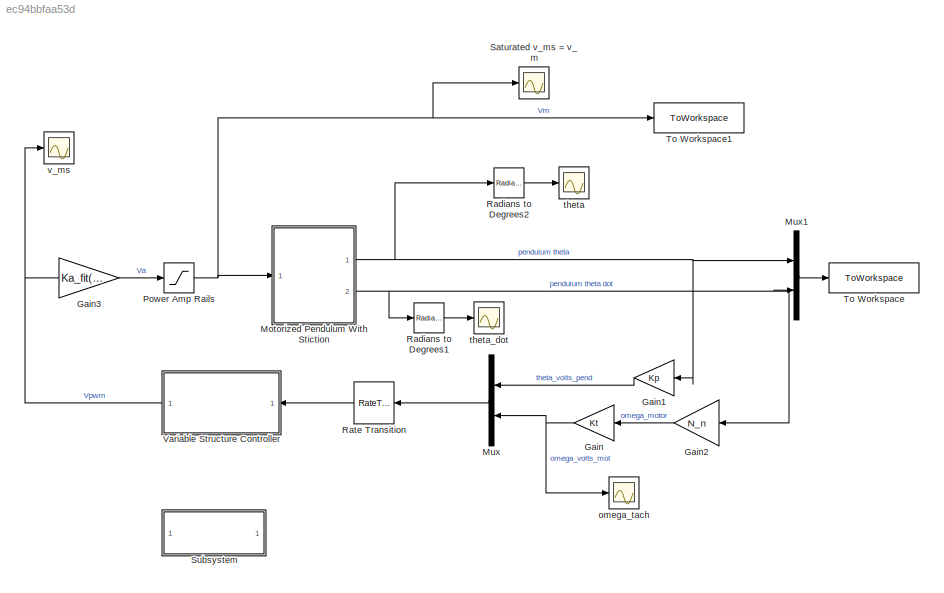
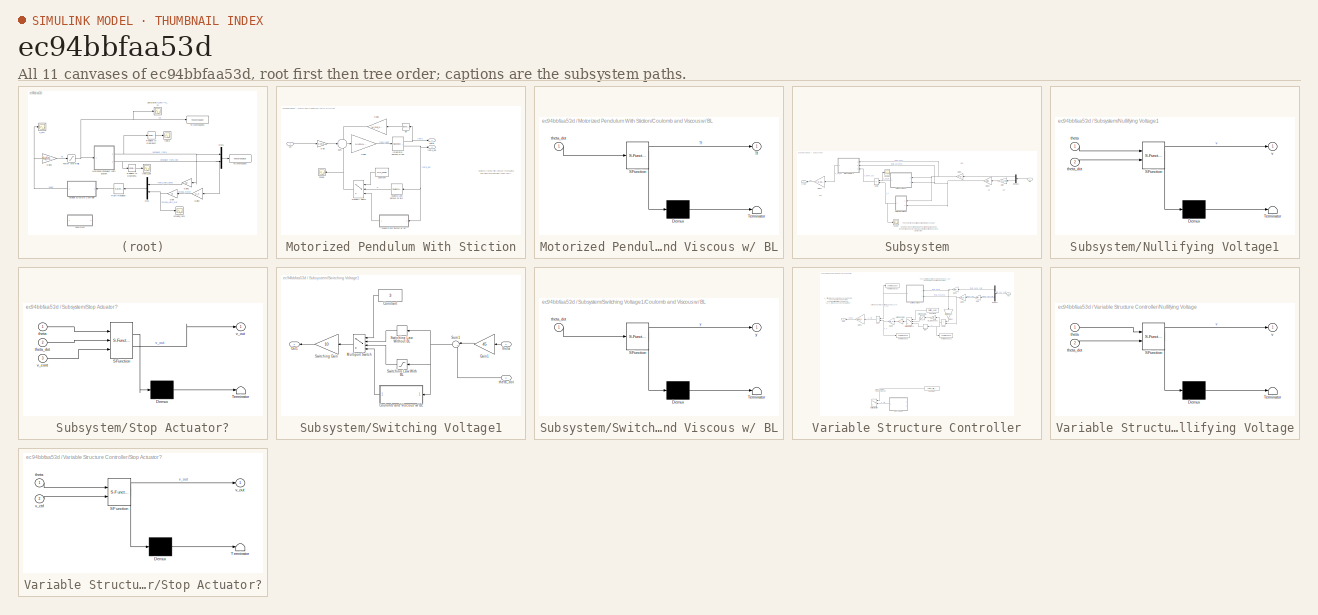
[diagram: thumbnail index - all 11 canvases of the model, root first then tree order]
MODEL slx_ec94bbfaa53d
KIND model
CONFIG AbsTol = auto
CONFIG EnableMultiTasking = off
CONFIG FixedStep = auto
CONFIG MaxStep = 1e-4
CONFIG MinStep = 1e-6
CONFIG RelTol = 1e-9
CONFIG SampleTimeConstraint = Unconstrained
CONFIG SolverName = VariableStepAuto
CONFIG StartTime = 0.0
CONFIG StopTime = tsim
BLOCK [Gain] Gain
  Gain = Kt
  NameLocation = top
BLOCK [Gain] Gain1
  Gain = Kp
  NameLocation = top
BLOCK [Gain] Gain2
  Gain = N_n
  NameLocation = top
BLOCK [Gain] Gain3
  Gain = Ka_fit(1)
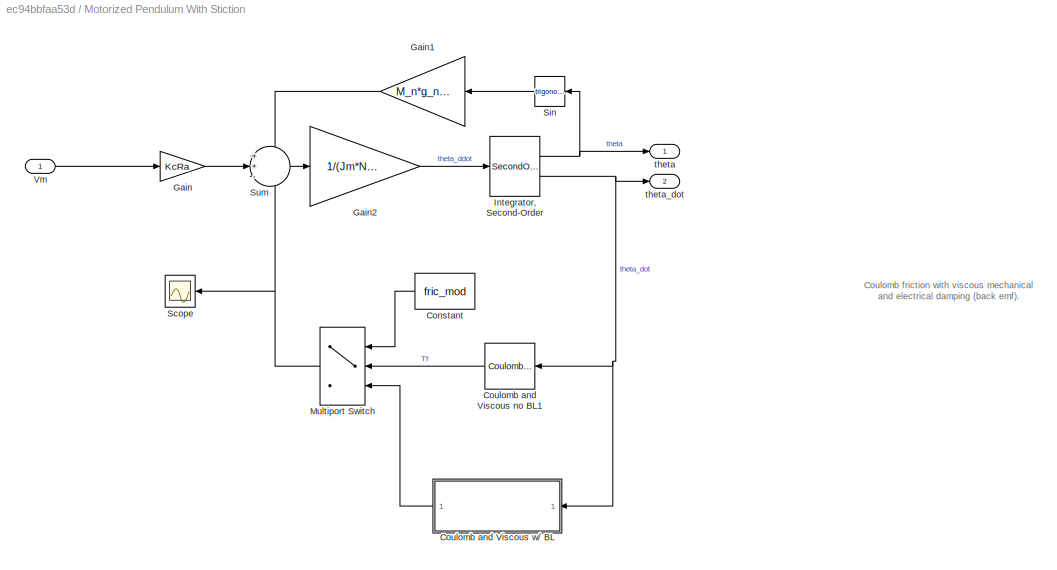
BLOCK [SubSystem] Motorized Pendulum With Stiction
  NameLocation = top
  Ports = [1, 2]
  RequestExecContextInheritance = off
BLOCK [Constant] Motorized Pendulum With Stiction/Constant
  NameLocation = top
  Value = fric_mod
BLOCK [Reference] Motorized Pendulum With Stiction/Coulomb and Viscous no BL1  REF=simulink/Discontinuities/Coulomb &
Viscous Friction
  NameLocation = top
  Ports = [1, 1]
  SourceBlock = simulink/Discontinuities/Coulomb &\nViscous Friction
  SourceProductBaseCode = SL
  SourceType = Coulombic and Viscous Friction
BLOCK [SubSystem] Motorized Pendulum With Stiction/Coulomb and Viscous w// BL
  ErrorFcn = Stateflow.Translate.translate
  NameLocation = top
  PermitHierarchicalResolution = ExplicitOnly
  Ports = [1, 1]
  RequestExecContextInheritance = off
  SFBlockType = MATLAB Function
  TreatAsAtomicUnit = on
BLOCK [Demux] Motorized Pendulum With Stiction/Coulomb and Viscous w// BL/ Demux 
  Outputs = 1
  Ports = [1, 1]
BLOCK [S-Function] Motorized Pendulum With Stiction/Coulomb and Viscous w// BL/ SFunction 
  EnableBusSupport = on
  FunctionName = sf_sfun
  Parameters = KcRa,Km,N_n,T_ba_n
  PortCounts = [1 2]
  Ports = [1, 2]
  SFcnIsStateOwnerBlock = off
  SFunctionDeploymentMode = off
  Tag = Stateflow S-Function 1
BLOCK [Terminator] Motorized Pendulum With Stiction/Coulomb and Viscous w// BL/ Terminator 
BLOCK [Outport] Motorized Pendulum With Stiction/Coulomb and Viscous w// BL/Tf
BLOCK [Inport] Motorized Pendulum With Stiction/Coulomb and Viscous w// BL/theta_dot
BLOCK [Gain] Motorized Pendulum With Stiction/Gain
  Gain = KcRa
BLOCK [Gain] Motorized Pendulum With Stiction/Gain1
  Gain = M_n*g_n*L_n
BLOCK [Gain] Motorized Pendulum With Stiction/Gain2
  Gain = 1/(Jm*N_n + Jp)
BLOCK [SecondOrderIntegrator] Motorized Pendulum With Stiction/Integrator, Second-Order
  ICDXDT = x0(2)
  ICX = x0(1)
  Ports = [1, 2]
  ZeroCross = off
BLOCK [MultiPortSwitch] Motorized Pendulum With Stiction/Multiport Switch
  InputSameDT = off
  Inputs = 2
  NameLocation = top
  Ports = [3, 1]
  SaturateOnIntegerOverflow = off
BLOCK [Scope] Motorized Pendulum With Stiction/Scope
  Floating = off
  NameLocation = top
  NumInputPorts = 1
  Ports = [1]
  ScopeSpecificationString = Simulink.scopes.TimeScopeBlockCfg('CurrentConfiguration', extmgr.ConfigurationSet(extmgr.Configuration('Core','General UI',true),extmgr.Configuration('Core','Source UI',true),extmgr.Configuration('Sources','WiredSimulink',true,'DataLoggingVariableName','ScopeData1'),extmgr.Configuration('Visuals','Time Domain',true,'SerializedDisplays',{struct('MinYLimReal','-0.23815','MaxYLimReal','0.16554','YLab...<+1419ch>
BLOCK [Trigonometry] Motorized Pendulum With Stiction/Sin
  NameLocation = top
  Ports = [1, 1]
BLOCK [Sum] Motorized Pendulum With Stiction/Sum
  Inputs = ++-
  Ports = [3, 1]
BLOCK [Inport] Motorized Pendulum With Stiction/Vm
BLOCK [Outport] Motorized Pendulum With Stiction/theta
  NameLocation = top
BLOCK [Outport] Motorized Pendulum With Stiction/theta_dot
  Port = 2
BLOCK [Mux] Mux
  DisplayOption = bar
  Inputs = 2
  NameLocation = right
  Ports = [2, 1]
BLOCK [Mux] Mux1
  DisplayOption = bar
  Inputs = 2
  Ports = [2, 1]
BLOCK [Saturate] Power Amp Rails
  LowerLimit = -15
  UpperLimit = 15
BLOCK [Reference] Radians to Degrees1  REF=simulink_extras/Transformations/Radians
to Degrees
  Ports = [1, 1]
  SourceBlock = simulink_extras/Transformations/Radians\nto Degrees
  SourceProductBaseCode = SL
  SourceType = RadiansToDegrees
BLOCK [Reference] Radians to Degrees2  REF=simulink_extras/Transformations/Radians
to Degrees
  Ports = [1, 1]
  SourceBlock = simulink_extras/Transformations/Radians\nto Degrees
  SourceProductBaseCode = SL
  SourceType = RadiansToDegrees
BLOCK [RateTransition] Rate Transition
  NameLocation = top
  OutPortSampleTime = t_samp
BLOCK [Scope] Saturated v_ms = v_m
  Floating = off
  NumInputPorts = 1
  Ports = [1]
  ScopeSpecificationString = Simulink.scopes.TimeScopeBlockCfg('CurrentConfiguration', extmgr.ConfigurationSet(extmgr.Configuration('Core','General UI',true),extmgr.Configuration('Core','Source UI',true),extmgr.Configuration('Sources','WiredSimulink',true,'DataLoggingVariableName','ScopeData4'),extmgr.Configuration('Visuals','Time Domain',true,'SerializedDisplays',{struct('MinYLimReal','-16.0342','MaxYLimReal','18.44824','YLa...<+1558ch>
BLOCK [SubSystem] Subsystem
  Commented = on
  NameLocation = top
  Ports = [1, 1]
  RequestExecContextInheritance = off
BLOCK [Demux] Subsystem/Demux1
  NameLocation = top
  Outputs = 2
  Ports = [1, 2]
BLOCK [Gain] Subsystem/Gain
  Gain = 1/-0.143
  NameLocation = top
BLOCK [Gain] Subsystem/Gain1
  Gain = 1/-4.9
  NameLocation = top
BLOCK [Gain] Subsystem/Gain2
  Gain = 1/8.1
  NameLocation = top
BLOCK [Gain] Subsystem/Gain3
  Gain = 1/-5.0204
  NameLocation = top
BLOCK [Inport] Subsystem/In2
  NameLocation = top
  SampleTime = .01
BLOCK [SubSystem] Subsystem/Nullifying Voltage1
  ErrorFcn = Stateflow.Translate.translate
  NameLocation = top
  PermitHierarchicalResolution = ExplicitOnly
  Ports = [2, 1]
  RequestExecContextInheritance = off
  SFBlockType = MATLAB Function
  TreatAsAtomicUnit = on
BLOCK [Demux] Subsystem/Nullifying Voltage1/ Demux 
  Outputs = 1
  Ports = [1, 1]
BLOCK [S-Function] Subsystem/Nullifying Voltage1/ SFunction 
  EnableBusSupport = on
  FunctionName = sf_sfun
  PortCounts = [2 2]
  Ports = [2, 2]
  SFcnIsStateOwnerBlock = off
  SFunctionDeploymentMode = off
  Tag = Stateflow S-Function 5
BLOCK [Terminator] Subsystem/Nullifying Voltage1/ Terminator 
BLOCK [Inport] Subsystem/Nullifying Voltage1/theta
BLOCK [Inport] Subsystem/Nullifying Voltage1/theta_dot
  Port = 2
BLOCK [Outport] Subsystem/Nullifying Voltage1/v
BLOCK [Scope] Subsystem/Scope
  Floating = off
  NumInputPorts = 1
  Ports = [1]
  ScopeSpecificationString = Simulink.scopes.TimeScopeBlockCfg('CurrentConfiguration', extmgr.ConfigurationSet(extmgr.Configuration('Core','General UI',true),extmgr.Configuration('Core','Source UI',true),extmgr.Configuration('Sources','WiredSimulink',true,'DataLoggingVariableName','ScopeData2'),extmgr.Configuration('Visuals','Time Domain',true,'SerializedDisplays',{struct('MinYLimReal','-12.5','MaxYLimReal','12.5','YLabelReal...<+1395ch>
BLOCK [Scope] Subsystem/Scope1
  Floating = off
  NumInputPorts = 1
  Ports = [1]
  ScopeSpecificationString = Simulink.scopes.TimeScopeBlockCfg('CurrentConfiguration', extmgr.ConfigurationSet(extmgr.Configuration('Core','General UI',true),extmgr.Configuration('Core','Source UI',true),extmgr.Configuration('Sources','WiredSimulink',true,'DataLoggingVariableName','ScopeData3'),extmgr.Configuration('Visuals','Time Domain',true,'SerializedDisplays',{struct('MinYLimReal','-1.92638','MaxYLimReal','6.26488','YLab...<+1391ch>
BLOCK [SubSystem] Subsystem/Stop Actuator?
  ErrorFcn = Stateflow.Translate.translate
  NameLocation = top
  PermitHierarchicalResolution = ExplicitOnly
  Ports = [3, 1]
  RequestExecContextInheritance = off
  SFBlockType = MATLAB Function
  TreatAsAtomicUnit = on
BLOCK [Demux] Subsystem/Stop Actuator?/ Demux 
  Outputs = 1
  Ports = [1, 1]
BLOCK [S-Function] Subsystem/Stop Actuator?/ SFunction 
  EnableBusSupport = on
  FunctionName = sf_sfun
  PortCounts = [3 2]
  Ports = [3, 2]
  SFcnIsStateOwnerBlock = off
  SFunctionDeploymentMode = off
  Tag = Stateflow S-Function 6
BLOCK [Terminator] Subsystem/Stop Actuator?/ Terminator 
BLOCK [Inport] Subsystem/Stop Actuator?/theta
BLOCK [Inport] Subsystem/Stop Actuator?/theta_dot
  Port = 2
BLOCK [Inport] Subsystem/Stop Actuator?/v_cont
  Port = 3
BLOCK [Outport] Subsystem/Stop Actuator?/v_out
BLOCK [Sum] Subsystem/Sum1
  IconShape = rectangular
  Inputs = +-
  NameLocation = top
  Ports = [2, 1]
BLOCK [SubSystem] Subsystem/Switching Voltage1
  NameLocation = top
  Ports = [2, 1]
  RequestExecContextInheritance = off
BLOCK [Constant] Subsystem/Switching Voltage1/Constant
  NameLocation = top
  Value = 3
BLOCK [SubSystem] Subsystem/Switching Voltage1/Coulomb and Viscous w// BL
  ErrorFcn = Stateflow.Translate.translate
  NameLocation = top
  PermitHierarchicalResolution = ExplicitOnly
  Ports = [1, 1]
  RequestExecContextInheritance = off
  SFBlockType = MATLAB Function
  TreatAsAtomicUnit = on
BLOCK [Demux] Subsystem/Switching Voltage1/Coulomb and Viscous w// BL/ Demux 
  Outputs = 1
  Ports = [1, 1]
BLOCK [S-Function] Subsystem/Switching Voltage1/Coulomb and Viscous w// BL/ SFunction 
  EnableBusSupport = on
  FunctionName = sf_sfun
  PortCounts = [1 2]
  Ports = [1, 2]
  SFcnIsStateOwnerBlock = off
  SFunctionDeploymentMode = off
  Tag = Stateflow S-Function 7
BLOCK [Terminator] Subsystem/Switching Voltage1/Coulomb and Viscous w// BL/ Terminator 
BLOCK [Inport] Subsystem/Switching Voltage1/Coulomb and Viscous w// BL/theta_dot
BLOCK [Outport] Subsystem/Switching Voltage1/Coulomb and Viscous w// BL/y
BLOCK [Gain] Subsystem/Switching Voltage1/Gain1
  Gain = 45
  NameLocation = top
BLOCK [MultiPortSwitch] Subsystem/Switching Voltage1/Multiport Switch
  InputSameDT = off
  NameLocation = top
  Ports = [4, 1]
  SaturateOnIntegerOverflow = off
BLOCK [Outport] Subsystem/Switching Voltage1/Out1
  NameLocation = top
BLOCK [Sum] Subsystem/Switching Voltage1/Sum1
  Inputs = |++
  NameLocation = top
  Ports = [2, 1]
BLOCK [Gain] Subsystem/Switching Voltage1/Switching Gain
  Gain = 10
  NameLocation = top
BLOCK [Saturate] Subsystem/Switching Voltage1/Switching Law With BL
  LowerLimit = -1
  NameLocation = top
  UpperLimit = 1
BLOCK [Signum] Subsystem/Switching Voltage1/Switching Law Without BL
  NameLocation = top
BLOCK [Inport] Subsystem/Switching Voltage1/theta
BLOCK [Inport] Subsystem/Switching Voltage1/theta_dot
  Port = 2
BLOCK [Outport] Subsystem/v_out
  NameLocation = top
  SampleTime = 0
BLOCK [ToWorkspace] To Workspace
  FixptAsFi = on
  MaxDataPoints = inf
  Ports = [1]
  SampleTime = -1
  VariableName = x
BLOCK [ToWorkspace] To Workspace1
  FixptAsFi = on
  MaxDataPoints = inf
  Ports = [1]
  VariableName = vm
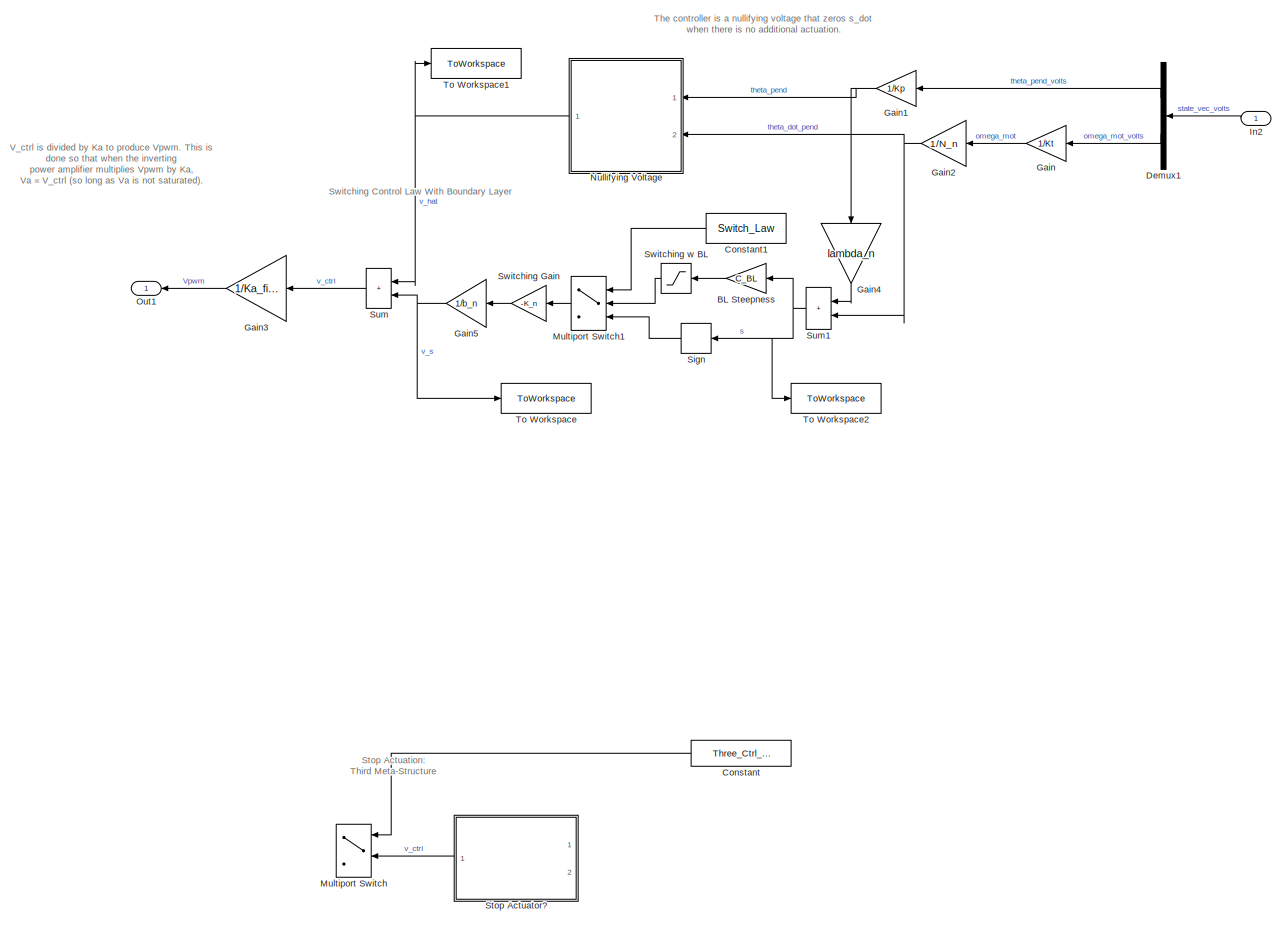
[diagram: Variable Structure Controller - part 1/1, most of the canvas]
BLOCK [SubSystem] Variable Structure Controller
  NameLocation = top
  Ports = [1, 1]
  RequestExecContextInheritance = off
BLOCK [Gain] Variable Structure Controller/BL Steepness
  Gain = C_BL
  NameLocation = top
BLOCK [Constant] Variable Structure Controller/Constant
  Commented = on
  NameLocation = top
  Value = Three_Ctrl_Struc
BLOCK [Constant] Variable Structure Controller/Constant1
  NameLocation = top
  Value = Switch_Law
BLOCK [Demux] Variable Structure Controller/Demux1
  NameLocation = top
  Outputs = 2
  Ports = [1, 2]
BLOCK [Gain] Variable Structure Controller/Gain
  Gain = 1/Kt
  NameLocation = top
BLOCK [Gain] Variable Structure Controller/Gain1
  Gain = 1/Kp
  NameLocation = top
BLOCK [Gain] Variable Structure Controller/Gain2
  Gain = 1/N_n
  NameLocation = top
BLOCK [Gain] Variable Structure Controller/Gain3
  Gain = 1/Ka_fit(1)
  NameLocation = top
BLOCK [Gain] Variable Structure Controller/Gain4
  Gain = lambda_n
  NameLocation = left
BLOCK [Gain] Variable Structure Controller/Gain5
  Gain = 1/b_n
  NameLocation = top
BLOCK [Inport] Variable Structure Controller/In2
  NameLocation = top
BLOCK [MultiPortSwitch] Variable Structure Controller/Multiport Switch
  Commented = on
  InputSameDT = off
  NameLocation = top
  Ports = [4, 1]
  SaturateOnIntegerOverflow = off
BLOCK [MultiPortSwitch] Variable Structure Controller/Multiport Switch1
  InputSameDT = off
  Inputs = 2
  NameLocation = top
  Ports = [3, 1]
  SaturateOnIntegerOverflow = off
BLOCK [SubSystem] Variable Structure Controller/Nullifying Voltage
  ErrorFcn = Stateflow.Translate.translate
  NameLocation = top
  PermitHierarchicalResolution = ExplicitOnly
  Ports = [2, 1]
  RequestExecContextInheritance = off
  SFBlockType = MATLAB Function
  TreatAsAtomicUnit = on
BLOCK [Demux] Variable Structure Controller/Nullifying Voltage/ Demux 
  Outputs = 1
  Ports = [1, 1]
BLOCK [S-Function] Variable Structure Controller/Nullifying Voltage/ SFunction 
  EnableBusSupport = on
  FunctionName = sf_sfun
  Parameters = lambda_n
  PortCounts = [2 2]
  Ports = [2, 2]
  SFcnIsStateOwnerBlock = off
  SFunctionDeploymentMode = off
  Tag = Stateflow S-Function 2
BLOCK [Terminator] Variable Structure Controller/Nullifying Voltage/ Terminator 
BLOCK [Inport] Variable Structure Controller/Nullifying Voltage/theta
BLOCK [Inport] Variable Structure Controller/Nullifying Voltage/theta_dot
  Port = 2
BLOCK [Outport] Variable Structure Controller/Nullifying Voltage/v
BLOCK [Outport] Variable Structure Controller/Out1
  NameLocation = top
BLOCK [Signum] Variable Structure Controller/Sign
  NameLocation = top
BLOCK [SubSystem] Variable Structure Controller/Stop Actuator?
  Commented = on
  ErrorFcn = Stateflow.Translate.translate
  NameLocation = top
  PermitHierarchicalResolution = ExplicitOnly
  Ports = [2, 1]
  RequestExecContextInheritance = off
  SFBlockType = MATLAB Function
  TreatAsAtomicUnit = on
BLOCK [Demux] Variable Structure Controller/Stop Actuator?/ Demux 
  Outputs = 1
  Ports = [1, 1]
BLOCK [S-Function] Variable Structure Controller/Stop Actuator?/ SFunction 
  EnableBusSupport = on
  FunctionName = sf_sfun
  PortCounts = [2 2]
  Ports = [2, 2]
  SFcnIsStateOwnerBlock = off
  SFunctionDeploymentMode = off
  Tag = Stateflow S-Function 3
BLOCK [Terminator] Variable Structure Controller/Stop Actuator?/ Terminator 
BLOCK [Inport] Variable Structure Controller/Stop Actuator?/theta
BLOCK [Inport] Variable Structure Controller/Stop Actuator?/v_ctrl
  Port = 2
BLOCK [Outport] Variable Structure Controller/Stop Actuator?/v_out
BLOCK [Sum] Variable Structure Controller/Sum
  IconShape = rectangular
  Inputs = |++
  NameLocation = top
  Ports = [2, 1]
BLOCK [Sum] Variable Structure Controller/Sum1
  IconShape = rectangular
  Inputs = |++
  NameLocation = top
  Ports = [2, 1]
BLOCK [Gain] Variable Structure Controller/Switching Gain
  Gain = -K_n
  NameLocation = top
BLOCK [Saturate] Variable Structure Controller/Switching w BL
  LowerLimit = -1
  NameLocation = top
  UpperLimit = 1
BLOCK [ToWorkspace] Variable Structure Controller/To Workspace
  FixptAsFi = on
  MaxDataPoints = inf
  Ports = [1]
  VariableName = v_s
BLOCK [ToWorkspace] Variable Structure Controller/To Workspace1
  FixptAsFi = on
  MaxDataPoints = inf
  Ports = [1]
  VariableName = v_hat
BLOCK [ToWorkspace] Variable Structure Controller/To Workspace2
  FixptAsFi = on
  MaxDataPoints = inf
  Ports = [1]
  VariableName = S
BLOCK [Scope] omega_tach
  Floating = off
  NumInputPorts = 1
  Ports = [1]
  ScopeSpecificationString = Simulink.scopes.TimeScopeBlockCfg('CurrentConfiguration', extmgr.ConfigurationSet(extmgr.Configuration('Core','General UI',true),extmgr.Configuration('Core','Source UI',true),extmgr.Configuration('Sources','WiredSimulink',true,'DataLoggingVariableName','ScopeData1'),extmgr.Configuration('Visuals','Time Domain',true,'SerializedDisplays',{struct('MinYLimReal','-0.29362','MaxYLimReal','2.35925','YLab...<+1447ch>
BLOCK [Scope] theta
  Floating = off
  NumInputPorts = 1
  Ports = [1]
  ScopeSpecificationString = Simulink.scopes.TimeScopeBlockCfg('CurrentConfiguration', extmgr.ConfigurationSet(extmgr.Configuration('Core','General UI',true),extmgr.Configuration('Core','Source UI',true),extmgr.Configuration('Sources','WiredSimulink',true,'DataLoggingVariableName','ScopeData1'),extmgr.Configuration('Visuals','Time Domain',true,'SerializedDisplays',{struct('MinYLimReal','-13.74888','MaxYLimReal','123.74988','Y...<+1462ch>
BLOCK [Scope] theta_dot
  Floating = off
  NumInputPorts = 1
  Ports = [1]
  ScopeSpecificationString = Simulink.scopes.TimeScopeBlockCfg('CurrentConfiguration', extmgr.ConfigurationSet(extmgr.Configuration('Core','General UI',true),extmgr.Configuration('Core','Source UI',true),extmgr.Configuration('Sources','WiredSimulink',true,'DataLoggingVariableName','ScopeData2'),extmgr.Configuration('Visuals','Time Domain',true,'SerializedDisplays',{struct('MinYLimReal','-0.05554','MaxYLimReal','0.0569','YLabe...<+1447ch>
BLOCK [Scope] v_ms
  Floating = off
  NumInputPorts = 1
  Ports = [1]
  ScopeSpecificationString = Simulink.scopes.TimeScopeBlockCfg('CurrentConfiguration', extmgr.ConfigurationSet(extmgr.Configuration('Core','General UI',true),extmgr.Configuration('Core','Source UI',true),extmgr.Configuration('Sources','WiredSimulink',true,'DataLoggingVariableName','ScopeData3'),extmgr.Configuration('Visuals','Time Domain',true,'SerializedDisplays',{struct('MinYLimReal','-0.0382','MaxYLimReal','0.24574','YLabe...<+1553ch>
ANNOTATION Motorized Pendulum With Stiction: Coulomb friction with viscous mechanical and electrical damping (back emf).
ANNOTATION Subsystem: 1/Ka
ANNOTATION Subsystem: 1/Kp
ANNOTATION Subsystem: 1/Kt
ANNOTATION Subsystem: 1/N
ANNOTATION Subsystem: The controller is a nullifying voltage that zeros S dot when there is no switching law. The switching law is added to control the behavior of S dot such that the switching surface S is attractive.
ANNOTATION Variable Structure Controller: Stop Actuation: Third Meta-Structure
ANNOTATION Variable Structure Controller: Switching Control Law With Boundary Layer
ANNOTATION Variable Structure Controller: The controller is a nullifying voltage that zeros s_dot when there is no additional actuation.
ANNOTATION Variable Structure Controller: V_ctrl is divided by Ka to produce Vpwm. This is done so that when the inverting power amplifier multiplies Vpwm by Ka, Va = V_ctrl (so long as Va is not saturated).
LINE Gain1:1 -> Mux:1
LINE Gain2:1 -> Gain:1
LINE Gain3:1 -> Power Amp Rails:1
NET Gain:1 -> Mux:2, omega_tach:1
LINE Motorized Pendulum With Stiction/Constant:1 -> Motorized Pendulum With Stiction/Multiport Switch:1
LINE Motorized Pendulum With Stiction/Coulomb and Viscous no BL1:1 -> Motorized Pendulum With Stiction/Multiport Switch:2
LINE Motorized Pendulum With Stiction/Coulomb and Viscous w// BL:1 -> Motorized Pendulum With Stiction/Multiport Switch:3
LINE Motorized Pendulum With Stiction/Gain1:1 -> Motorized Pendulum With Stiction/Sum:1
LINE Motorized Pendulum With Stiction/Gain2:1 -> Motorized Pendulum With Stiction/Integrator, Second-Order:1
LINE Motorized Pendulum With Stiction/Gain:1 -> Motorized Pendulum With Stiction/Sum:2
NET Motorized Pendulum With Stiction/Integrator, Second-Order:1 -> Motorized Pendulum With Stiction/Sin:1, Motorized Pendulum With Stiction/theta:1
NET Motorized Pendulum With Stiction/Integrator, Second-Order:2 -> Motorized Pendulum With Stiction/Coulomb and Viscous no BL1:1, Motorized Pendulum With Stiction/Coulomb and Viscous w// BL:1, Motorized Pendulum With Stiction/theta_dot:1
NET Motorized Pendulum With Stiction/Multiport Switch:1 -> Motorized Pendulum With Stiction/Scope:1, Motorized Pendulum With Stiction/Sum:3
LINE Motorized Pendulum With Stiction/Sin:1 -> Motorized Pendulum With Stiction/Gain1:1
LINE Motorized Pendulum With Stiction/Sum:1 -> Motorized Pendulum With Stiction/Gain2:1
LINE Motorized Pendulum With Stiction/Vm:1 -> Motorized Pendulum With Stiction/Gain:1
NET Motorized Pendulum With Stiction:1 -> Gain1:1, Mux1:1, Radians to Degrees2:1
NET Motorized Pendulum With Stiction:2 -> Gain2:1, Mux1:2, Radians to Degrees1:1
LINE Mux1:1 -> To Workspace:1
LINE Mux:1 -> Rate Transition:1
NET Power Amp Rails:1 -> Motorized Pendulum With Stiction:1, Saturated v_ms = v_m:1, To Workspace1:1
LINE Radians to Degrees1:1 -> theta_dot:1
LINE Radians to Degrees2:1 -> theta:1
LINE Rate Transition:1 -> Variable Structure Controller:1
LINE Subsystem/Demux1:1 -> Subsystem/Gain1:1
LINE Subsystem/Demux1:2 -> Subsystem/Gain:1
NET Subsystem/Gain1:1 -> Subsystem/Nullifying Voltage1:1, Subsystem/Stop Actuator?:1, Subsystem/Switching Voltage1:1
NET Subsystem/Gain2:1 -> Subsystem/Nullifying Voltage1:2, Subsystem/Stop Actuator?:2, Subsystem/Switching Voltage1:2
LINE Subsystem/Gain3:1 -> Subsystem/v_out:1
LINE Subsystem/Gain:1 -> Subsystem/Gain2:1
LINE Subsystem/In2:1 -> Subsystem/Demux1:1
NET Subsystem/Nullifying Voltage1:1 -> Subsystem/Scope1:1, Subsystem/Sum1:1
LINE Subsystem/Stop Actuator?:1 -> Subsystem/Gain3:1
LINE Subsystem/Sum1:1 -> Subsystem/Stop Actuator?:3
LINE Subsystem/Switching Voltage1/Constant:1 -> Subsystem/Switching Voltage1/Multiport Switch:1
LINE Subsystem/Switching Voltage1/Coulomb and Viscous w// BL:1 -> Subsystem/Switching Voltage1/Multiport Switch:4
LINE Subsystem/Switching Voltage1/Gain1:1 -> Subsystem/Switching Voltage1/Sum1:1
LINE Subsystem/Switching Voltage1/Multiport Switch:1 -> Subsystem/Switching Voltage1/Switching Gain:1
NET Subsystem/Switching Voltage1/Sum1:1 -> Subsystem/Switching Voltage1/Coulomb and Viscous w// BL:1, Subsystem/Switching Voltage1/Switching Law With BL:1, Subsystem/Switching Voltage1/Switching Law Without BL:1
LINE Subsystem/Switching Voltage1/Switching Gain:1 -> Subsystem/Switching Voltage1/Out1:1
LINE Subsystem/Switching Voltage1/Switching Law With BL:1 -> Subsystem/Switching Voltage1/Multiport Switch:3
LINE Subsystem/Switching Voltage1/Switching Law Without BL:1 -> Subsystem/Switching Voltage1/Multiport Switch:2
LINE Subsystem/Switching Voltage1/theta:1 -> Subsystem/Switching Voltage1/Gain1:1
LINE Subsystem/Switching Voltage1/theta_dot:1 -> Subsystem/Switching Voltage1/Sum1:2
NET Subsystem/Switching Voltage1:1 -> Subsystem/Scope:1, Subsystem/Sum1:2
LINE Variable Structure Controller/BL Steepness:1 -> Variable Structure Controller/Switching w BL:1
LINE Variable Structure Controller/Constant1:1 -> Variable Structure Controller/Multiport Switch1:1
LINE Variable Structure Controller/Constant:1 -> Variable Structure Controller/Multiport Switch:1
LINE Variable Structure Controller/Demux1:1 -> Variable Structure Controller/Gain1:1
LINE Variable Structure Controller/Demux1:2 -> Variable Structure Controller/Gain:1
NET Variable Structure Controller/Gain1:1 -> Variable Structure Controller/Gain4:1, Variable Structure Controller/Nullifying Voltage:1
NET Variable Structure Controller/Gain2:1 -> Variable Structure Controller/Nullifying Voltage:2, Variable Structure Controller/Sum1:2
LINE Variable Structure Controller/Gain3:1 -> Variable Structure Controller/Out1:1
LINE Variable Structure Controller/Gain4:1 -> Variable Structure Controller/Sum1:1
NET Variable Structure Controller/Gain5:1 -> Variable Structure Controller/Sum:2, Variable Structure Controller/To Workspace:1
LINE Variable Structure Controller/Gain:1 -> Variable Structure Controller/Gain2:1
LINE Variable Structure Controller/In2:1 -> Variable Structure Controller/Demux1:1
LINE Variable Structure Controller/Multiport Switch1:1 -> Variable Structure Controller/Switching Gain:1
NET Variable Structure Controller/Nullifying Voltage:1 -> Variable Structure Controller/Sum:1, Variable Structure Controller/To Workspace1:1
LINE Variable Structure Controller/Sign:1 -> Variable Structure Controller/Multiport Switch1:3
LINE Variable Structure Controller/Stop Actuator?:1 -> Variable Structure Controller/Multiport Switch:3
NET Variable Structure Controller/Sum1:1 -> Variable Structure Controller/BL Steepness:1, Variable Structure Controller/Sign:1, Variable Structure Controller/To Workspace2:1
LINE Variable Structure Controller/Sum:1 -> Variable Structure Controller/Gain3:1
LINE Variable Structure Controller/Switching Gain:1 -> Variable Structure Controller/Gain5:1
LINE Variable Structure Controller/Switching w BL:1 -> Variable Structure Controller/Multiport Switch1:2
NET Variable Structure Controller:1 -> Gain3:1, v_ms:1
note: NET lines group one-source signal fan-out (src -> all destinations, sorted); 1:1 wires keep LINE
CHART Motorized Pendulum With Stiction/Coulomb and Viscous w// BL states=1 transitions=1
  STATE_LABEL 'eML_blk_kernel()'
  STATE_LABEL 'SCRIPT:\nfunction Tf = fcn(theta_dot, Km,  KcRa, N_n, T_ba_n)\n\nTf = N_n*KcRa/Km*theta_dot + T_ba_n*erf(1e6*theta_dot);\n'
CHART Variable Structure Controller/Nullifying Voltage states=1 transitions=1
  STATE_LABEL 'eML_blk_kernel()'
  STATE_LABEL 'SCRIPT:\nfunction v = fcn(theta, theta_dot, lambda_n)\n\n\nv = 0.3501*theta_dot + 1.0684*sign(theta_dot) - 0.6600*sin(theta)...\n    - 0.1144*lambda_n*theta_dot;\n'
CHART Variable Structure Controller/Stop Actuator? states=1 transitions=1
  STATE_LABEL 'eML_blk_kernel()'
  STATE_LABEL 'SCRIPT:\nfunction v_out = fcn(theta, v_ctrl)\n\nif abs(theta) <=.001\n    \n    v_out = 0;\n    \nelse\n    \n    v_out = v_ctrl;\nend'
CHART Subsystem/Nullifying Voltage1 states=1 transitions=1
  STATE_LABEL 'eML_blk_kernel()'
  STATE_LABEL 'SCRIPT:\nfunction v = fcn(theta, theta_dot)\n\nlambda_n = 45;\nv = 0.3501*theta_dot - 1.0684*sign(theta_dot) - 0.6600*sin(theta_dot)...\n    - 0.1144*lambda_n*theta_dot;'
CHART Subsystem/Stop Actuator? states=1 transitions=1
  STATE_LABEL 'eML_blk_kernel()'
  STATE_LABEL 'SCRIPT:\nfunction v_out = fcn(theta, theta_dot, v_cont)\n\nif norm([theta theta_dot])<=.3\n    \n    v_out = 0;\n    \nelse\n    \n    v_out = v_cont;\nend'
CHART Subsystem/Switching Voltage1/Coulomb and Viscous w// BL states=1 transitions=1
  STATE_LABEL 'eML_blk_kernel()'
  STATE_LABEL 'SCRIPT:\nfunction y = fcn(theta_dot)\n\ny = erf(1.25*theta_dot);\n'
CHART  states=0 transitions=0
CHART  states=0 transitions=0
CHART  states=0 transitions=0
CHART  states=0 transitions=0
CHART  states=0 transitions=0
CHART  states=0 transitions=0
